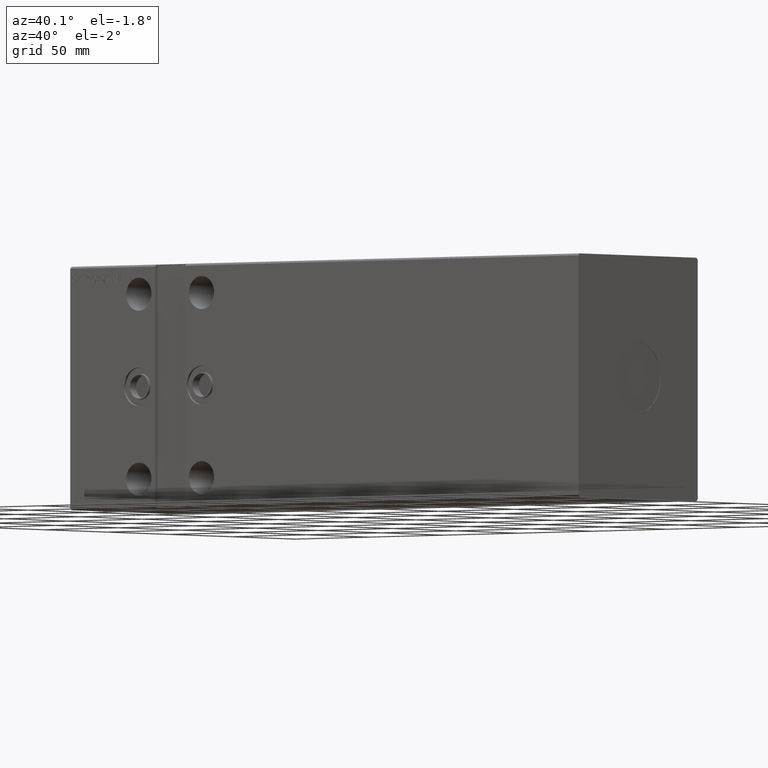
[diagram: clean part render]
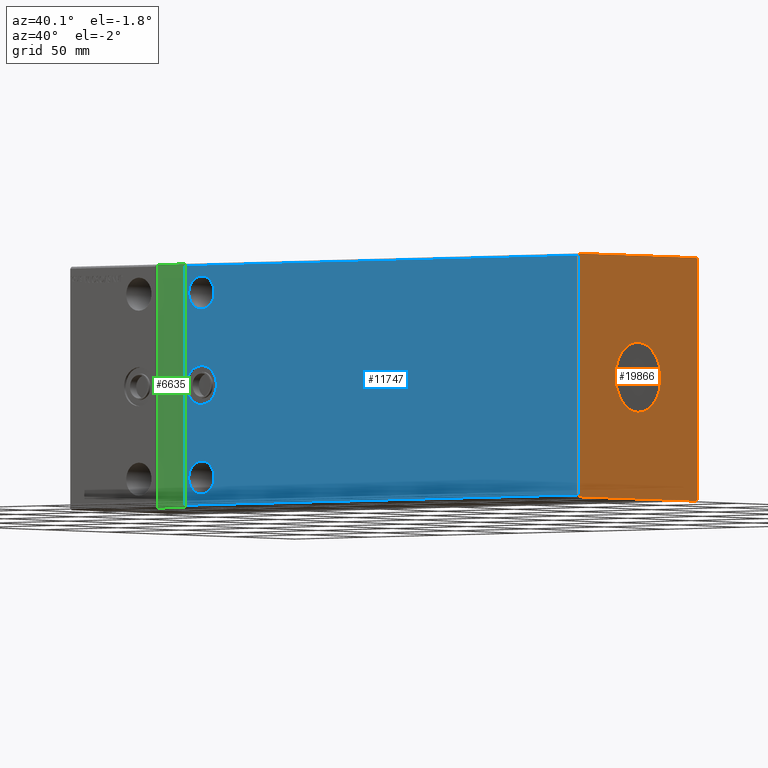
[diagram: same view with three faces highlighted in distinct colors, each labeled with its STEP entity id]
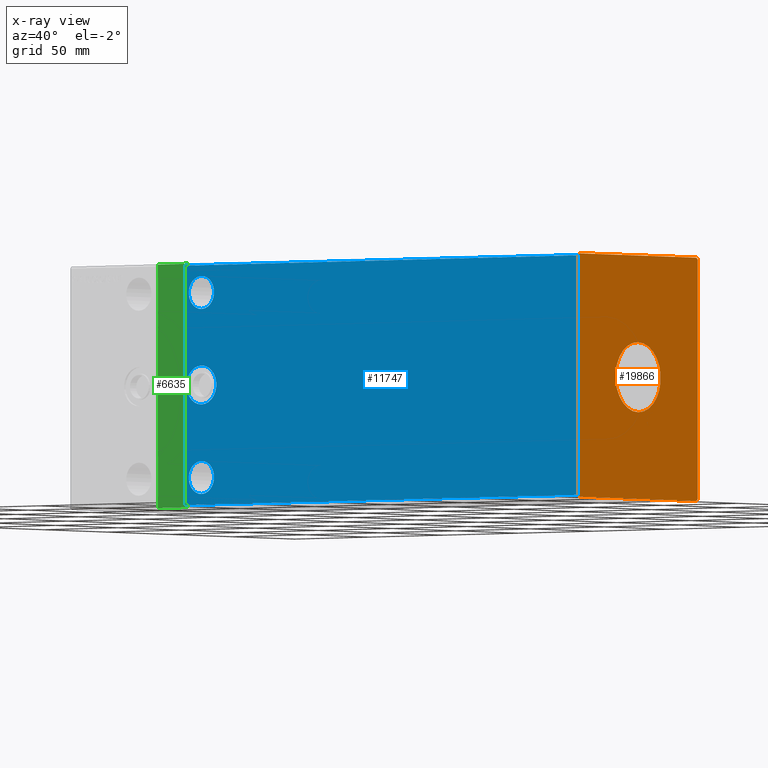
[diagram: x-ray of the same camera — body ghosted, the three highlighted faces saturated]
A machine part, auxiliary view with three faces highlighted in distinct colors.
The next image is the same camera in x-ray (body ghosted, the three faces saturated) — at least one of them is partly hidden behind the body in this view.
Their STEP definitions:

[orange] entity #19866 — the highlighted planar face has unit normal (1, 0, 0).
#725 = VERTEX_POINT ( 'NONE', #14111 ) ;
#1366 = DIRECTION ( 'NONE',  ( 0.000000000000000000, 0.7071067811865574537, 0.7071067811865376918 ) ) ;
#2636 = ORIENTED_EDGE ( 'NONE', *, *, #28074, .T. ) ;
#2779 = LINE ( 'NONE', #25714, #17661 ) ;
#3724 = DIRECTION ( 'NONE',  ( 1.000000000000000000, 0.000000000000000000, 0.000000000000000000 ) ) ;
#4388 = EDGE_CURVE ( 'NONE', #19469, #4892, #38250, .T. ) ;
#4892 = VERTEX_POINT ( 'NONE', #12856 ) ;
#5036 = ORIENTED_EDGE ( 'NONE', *, *, #28655, .F. ) ;
#7652 = ORIENTED_EDGE ( 'NONE', *, *, #38744, .T. ) ;
#8038 = VECTOR ( 'NONE', #17250, 1000.000000000000000 ) ;
#8917 = EDGE_LOOP ( 'NONE', ( #5036, #22134 ) ) ;
#9319 = DIRECTION ( 'NONE',  ( 0.000000000000000000, 1.000000000000000000, 1.492235248152092278E-16 ) ) ;
#9771 = VERTEX_POINT ( 'NONE', #34800 ) ;
#10301 = DIRECTION ( 'NONE',  ( 0.000000000000000000, 0.000000000000000000, -1.000000000000000000 ) ) ;
#10365 = LINE ( 'NONE', #20351, #10499 ) ;
#10499 = VECTOR ( 'NONE', #30143, 1000.000000000000000 ) ;
#11216 = VERTEX_POINT ( 'NONE', #41343 ) ;
#11528 = EDGE_CURVE ( 'NONE', #24691, #725, #16600, .T. ) ;
#12005 = VERTEX_POINT ( 'NONE', #14969 ) ;
#12856 = CARTESIAN_POINT ( 'NONE',  ( 341.0000000000000000, 0.000000000000000000, -18.00000000000000000 ) ) ;
#12877 = CARTESIAN_POINT ( 'NONE',  ( 341.0000000000000000, 46.50000000000000000, 62.49999999999998579 ) ) ;
#13189 = CARTESIAN_POINT ( 'NONE',  ( 341.0000000000000000, -47.49999999999999289, -61.50000000000001421 ) ) ;
#13522 = EDGE_CURVE ( 'NONE', #16272, #12005, #10365, .T. ) ;
#13615 = DIRECTION ( 'NONE',  ( 0.000000000000000000, 0.000000000000000000, -1.000000000000000000 ) ) ;
#14021 = ORIENTED_EDGE ( 'NONE', *, *, #13522, .T. ) ;
#14111 = CARTESIAN_POINT ( 'NONE',  ( 341.0000000000000000, -46.50000000000000000, -62.50000000000001421 ) ) ;
#14308 = CARTESIAN_POINT ( 'NONE',  ( 341.0000000000000000, 46.50000000000000000, -62.50000000000000000 ) ) ;
#14454 = AXIS2_PLACEMENT_3D ( 'NONE', #15094, #28064, #26134 ) ;
#14960 = CARTESIAN_POINT ( 'NONE',  ( 341.0000000000000000, 2.204364238465235428E-15, 18.00000000000000000 ) ) ;
#14969 = CARTESIAN_POINT ( 'NONE',  ( 341.0000000000000000, -46.50000000000001421, 62.49999999999997868 ) ) ;
#14994 = VECTOR ( 'NONE', #1366, 999.9999999999998863 ) ;
#15094 = CARTESIAN_POINT ( 'NONE',  ( 341.0000000000000000, 0.000000000000000000, 0.000000000000000000 ) ) ;
#15990 = LINE ( 'NONE', #38943, #20190 ) ;
#16181 = DIRECTION ( 'NONE',  ( 0.000000000000000000, 0.7071067811865451302, -0.7071067811865500152 ) ) ;
#16217 = CIRCLE ( 'NONE', #41363, 18.00000000000000000 ) ;
#16272 = VERTEX_POINT ( 'NONE', #12877 ) ;
#16600 = LINE ( 'NONE', #13189, #23431 ) ;
#16803 = CARTESIAN_POINT ( 'NONE',  ( 341.0000000000000000, 0.000000000000000000, 0.000000000000000000 ) ) ;
#17250 = DIRECTION ( 'NONE',  ( 0.000000000000000000, 1.692413147294445970E-16, -1.000000000000000000 ) ) ;
#17661 = VECTOR ( 'NONE', #22108, 1000.000000000000114 ) ;
#18003 = CARTESIAN_POINT ( 'NONE',  ( 341.0000000000000000, 46.50000000000000000, -62.50000000000000000 ) ) ;
#18070 = CARTESIAN_POINT ( 'NONE',  ( 341.0000000000000000, -47.50000000000001421, 61.49999999999997868 ) ) ;
#19469 = VERTEX_POINT ( 'NONE', #14960 ) ;
#19648 = EDGE_LOOP ( 'NONE', ( #21831, #14021, #2636, #7652, #24038, #39824, #29046, #36689 ) ) ;
#19866 = ADVANCED_FACE ( 'NONE', ( #33183, #23390 ), #19994, .T. ) ;
#19994 = PLANE ( 'NONE',  #30998 ) ;
#20190 = VECTOR ( 'NONE', #32361, 1000.000000000000114 ) ;
#20313 = VECTOR ( 'NONE', #9319, 1000.000000000000000 ) ;
#20351 = CARTESIAN_POINT ( 'NONE',  ( 341.0000000000000000, 46.50000000000000000, 62.49999999999998579 ) ) ;
#21114 = LINE ( 'NONE', #28120, #23620 ) ;
#21831 = ORIENTED_EDGE ( 'NONE', *, *, #36425, .T. ) ;
#22108 = DIRECTION ( 'NONE',  ( 0.000000000000000000, -0.7071067811865474617, -0.7071067811865474617 ) ) ;
#22134 = ORIENTED_EDGE ( 'NONE', *, *, #4388, .F. ) ;
#23390 = FACE_OUTER_BOUND ( 'NONE', #19648, .T. ) ;
#23431 = VECTOR ( 'NONE', #16181, 1000.000000000000114 ) ;
#23620 = VECTOR ( 'NONE', #30699, 1000.000000000000000 ) ;
#24038 = ORIENTED_EDGE ( 'NONE', *, *, #11528, .T. ) ;
#24691 = VERTEX_POINT ( 'NONE', #38374 ) ;
#25714 = CARTESIAN_POINT ( 'NONE',  ( 341.0000000000000000, -46.50000000000001421, 62.49999999999997868 ) ) ;
#26134 = DIRECTION ( 'NONE',  ( 0.000000000000000000, 0.000000000000000000, -1.000000000000000000 ) ) ;
#27684 = LINE ( 'NONE', #14308, #14994 ) ;
#28064 = DIRECTION ( 'NONE',  ( 1.000000000000000000, 0.000000000000000000, 0.000000000000000000 ) ) ;
#28074 = EDGE_CURVE ( 'NONE', #12005, #40656, #2779, .T. ) ;
#28120 = CARTESIAN_POINT ( 'NONE',  ( 341.0000000000000000, 47.50000000000001421, -61.50000000000001421 ) ) ;
#28655 = EDGE_CURVE ( 'NONE', #4892, #19469, #16217, .T. ) ;
#29046 = ORIENTED_EDGE ( 'NONE', *, *, #35428, .T. ) ;
#29789 = DIRECTION ( 'NONE',  ( 1.000000000000000000, 0.000000000000000000, 0.000000000000000000 ) ) ;
#29903 = EDGE_CURVE ( 'NONE', #725, #32379, #35051, .T. ) ;
#30143 = DIRECTION ( 'NONE',  ( 0.000000000000000000, -1.000000000000000000, -7.461176240760460157E-17 ) ) ;
#30699 = DIRECTION ( 'NONE',  ( 0.000000000000000000, -1.128275431529630729E-16, 1.000000000000000000 ) ) ;
#30998 = AXIS2_PLACEMENT_3D ( 'NONE', #16803, #29789, #13615 ) ;
#32361 = DIRECTION ( 'NONE',  ( 0.000000000000000000, -0.7071067811865474617, 0.7071067811865474617 ) ) ;
#32379 = VERTEX_POINT ( 'NONE', #18003 ) ;
#32581 = CARTESIAN_POINT ( 'NONE',  ( 341.0000000000000000, -47.50000000000001421, 61.49999999999997868 ) ) ;
#33183 = FACE_BOUND ( 'NONE', #8917, .T. ) ;
#34800 = CARTESIAN_POINT ( 'NONE',  ( 341.0000000000000000, 47.50000000000001421, -61.50000000000001421 ) ) ;
#35051 = LINE ( 'NONE', #41646, #20313 ) ;
#35428 = EDGE_CURVE ( 'NONE', #32379, #9771, #27684, .T. ) ;
#36425 = EDGE_CURVE ( 'NONE', #11216, #16272, #15990, .T. ) ;
#36689 = ORIENTED_EDGE ( 'NONE', *, *, #38589, .T. ) ;
#38250 = CIRCLE ( 'NONE', #14454, 18.00000000000000000 ) ;
#38374 = CARTESIAN_POINT ( 'NONE',  ( 341.0000000000000000, -47.49999999999999289, -61.50000000000001421 ) ) ;
#38589 = EDGE_CURVE ( 'NONE', #9771, #11216, #21114, .T. ) ;
#38744 = EDGE_CURVE ( 'NONE', #40656, #24691, #39801, .T. ) ;
#38943 = CARTESIAN_POINT ( 'NONE',  ( 341.0000000000000000, 47.50000000000000000, 61.49999999999998579 ) ) ;
#39432 = CARTESIAN_POINT ( 'NONE',  ( 341.0000000000000000, 0.000000000000000000, 0.000000000000000000 ) ) ;
#39801 = LINE ( 'NONE', #32581, #8038 ) ;
#39824 = ORIENTED_EDGE ( 'NONE', *, *, #29903, .T. ) ;
#40656 = VERTEX_POINT ( 'NONE', #18070 ) ;
#41343 = CARTESIAN_POINT ( 'NONE',  ( 341.0000000000000000, 47.50000000000000000, 61.49999999999998579 ) ) ;
#41363 = AXIS2_PLACEMENT_3D ( 'NONE', #39432, #3724, #10301 ) ;
#41646 = CARTESIAN_POINT ( 'NONE',  ( 341.0000000000000000, -46.50000000000000000, -62.50000000000001421 ) ) ;

[blue] entity #11747 — the highlighted planar face has unit normal (-0, 1, 0).
#1033 = EDGE_CURVE ( 'NONE', #30966, #4385, #18378, .T. ) ;
#1630 = DIRECTION ( 'NONE',  ( 0.000000000000000000, 0.000000000000000000, 1.000000000000000000 ) ) ;
#1984 = EDGE_CURVE ( 'NONE', #4385, #30966, #2099, .T. ) ;
#2099 = CIRCLE ( 'NONE', #10913, 9.999999999999994671 ) ;
#2265 = ORIENTED_EDGE ( 'NONE', *, *, #10976, .F. ) ;
#2475 = AXIS2_PLACEMENT_3D ( 'NONE', #19744, #9754, #29320 ) ;
#3740 = DIRECTION ( 'NONE',  ( 0.000000000000000000, 0.000000000000000000, 1.000000000000000000 ) ) ;
#3831 = DIRECTION ( 'NONE',  ( 0.000000000000000000, -1.000000000000000000, -1.692413147294446463E-16 ) ) ;
#4043 = DIRECTION ( 'NONE',  ( 0.000000000000000000, 0.000000000000000000, 1.000000000000000000 ) ) ;
#4385 = VERTEX_POINT ( 'NONE', #12544 ) ;
#5782 = EDGE_CURVE ( 'NONE', #40656, #38372, #23421, .T. ) ;
#6001 = EDGE_LOOP ( 'NONE', ( #2265, #33177 ) ) ;
#6934 = DIRECTION ( 'NONE',  ( 0.000000000000000000, -1.000000000000000000, -1.692413147294446463E-16 ) ) ;
#7283 = CARTESIAN_POINT ( 'NONE',  ( 341.0000000000000000, -47.50000000000001421, 61.49999999999997868 ) ) ;
#7787 = VECTOR ( 'NONE', #22590, 1000.000000000000000 ) ;
#8038 = VECTOR ( 'NONE', #17250, 1000.000000000000000 ) ;
#8176 = CARTESIAN_POINT ( 'NONE',  ( 88.00000000000002842, -47.50000000000000000, -9.834339797136963856E-15 ) ) ;
#8862 = EDGE_CURVE ( 'NONE', #24691, #12209, #25358, .T. ) ;
#9292 = ORIENTED_EDGE ( 'NONE', *, *, #1033, .T. ) ;
#9754 = DIRECTION ( 'NONE',  ( -0.000000000000000000, 1.000000000000000000, 1.692413147294446463E-16 ) ) ;
#10078 = CIRCLE ( 'NONE', #38599, 8.500000000000007105 ) ;
#10238 = EDGE_LOOP ( 'NONE', ( #37025, #40506 ) ) ;
#10254 = DIRECTION ( 'NONE',  ( -1.000000000000000000, -0.000000000000000000, -0.000000000000000000 ) ) ;
#10648 = CARTESIAN_POINT ( 'NONE',  ( 88.00000000000001421, -47.50000000000001421, 55.99999999999999289 ) ) ;
#10762 = CARTESIAN_POINT ( 'NONE',  ( 88.00000000000002842, -47.50000000000000000, -47.50000000000000711 ) ) ;
#10913 = AXIS2_PLACEMENT_3D ( 'NONE', #8176, #34319, #18143 ) ;
#10976 = EDGE_CURVE ( 'NONE', #16654, #37663, #21966, .T. ) ;
#11158 = VERTEX_POINT ( 'NONE', #25366 ) ;
#11408 = EDGE_LOOP ( 'NONE', ( #13683, #9292 ) ) ;
#11557 = ORIENTED_EDGE ( 'NONE', *, *, #5782, .T. ) ;
#11747 = ADVANCED_FACE ( 'NONE', ( #34442, #25061, #40818, #15283 ), #37826, .F. ) ;
#11963 = CARTESIAN_POINT ( 'NONE',  ( 88.00000000000002842, -47.50000000000000000, -9.834339797136963856E-15 ) ) ;
#12209 = VERTEX_POINT ( 'NONE', #16445 ) ;
#12544 = CARTESIAN_POINT ( 'NONE',  ( 88.00000000000002842, -47.50000000000000000, -10.00000000000000533 ) ) ;
#13467 = VECTOR ( 'NONE', #33195, 1000.000000000000000 ) ;
#13683 = ORIENTED_EDGE ( 'NONE', *, *, #1984, .T. ) ;
#14510 = AXIS2_PLACEMENT_3D ( 'NONE', #35829, #6934, #3740 ) ;
#14846 = AXIS2_PLACEMENT_3D ( 'NONE', #19769, #3831, #4043 ) ;
#15012 = ORIENTED_EDGE ( 'NONE', *, *, #38744, .F. ) ;
#15074 = CARTESIAN_POINT ( 'NONE',  ( 341.0000000000000000, -47.50000000000001421, 61.49999999999997868 ) ) ;
#15283 = FACE_BOUND ( 'NONE', #6001, .T. ) ;
#16445 = CARTESIAN_POINT ( 'NONE',  ( 77.00000000000004263, -47.50000000000000000, -61.50000000000002132 ) ) ;
#16654 = VERTEX_POINT ( 'NONE', #18264 ) ;
#17250 = DIRECTION ( 'NONE',  ( 0.000000000000000000, 1.692413147294445970E-16, -1.000000000000000000 ) ) ;
#17608 = EDGE_CURVE ( 'NONE', #11158, #19633, #29635, .T. ) ;
#18070 = CARTESIAN_POINT ( 'NONE',  ( 341.0000000000000000, -47.50000000000001421, 61.49999999999997868 ) ) ;
#18143 = DIRECTION ( 'NONE',  ( 0.000000000000000000, 0.000000000000000000, 1.000000000000000000 ) ) ;
#18264 = CARTESIAN_POINT ( 'NONE',  ( 88.00000000000001421, -47.50000000000001421, 38.99999999999999289 ) ) ;
#18378 = CIRCLE ( 'NONE', #31288, 9.999999999999994671 ) ;
#19190 = DIRECTION ( 'NONE',  ( -0.000000000000000000, 1.000000000000000000, 5.507058653894625853E-17 ) ) ;
#19633 = VERTEX_POINT ( 'NONE', #23232 ) ;
#19744 = CARTESIAN_POINT ( 'NONE',  ( 88.00000000000002842, -47.50000000000000000, -47.50000000000000711 ) ) ;
#19769 = CARTESIAN_POINT ( 'NONE',  ( 88.00000000000001421, -47.50000000000001421, 47.49999999999999289 ) ) ;
#19977 = ORIENTED_EDGE ( 'NONE', *, *, #25682, .F. ) ;
#20216 = LINE ( 'NONE', #36376, #13467 ) ;
#21966 = CIRCLE ( 'NONE', #14510, 8.500000000000000000 ) ;
#22205 = CARTESIAN_POINT ( 'NONE',  ( 77.00000000000001421, -47.50000000000000000, 61.49999999999999289 ) ) ;
#22590 = DIRECTION ( 'NONE',  ( -1.000000000000000000, -0.000000000000000000, -0.000000000000000000 ) ) ;
#23232 = CARTESIAN_POINT ( 'NONE',  ( 88.00000000000002842, -47.50000000000000000, -39.00000000000000000 ) ) ;
#23421 = LINE ( 'NONE', #7283, #24669 ) ;
#24374 = CIRCLE ( 'NONE', #14846, 8.500000000000000000 ) ;
#24532 = ORIENTED_EDGE ( 'NONE', *, *, #8862, .F. ) ;
#24669 = VECTOR ( 'NONE', #10254, 1000.000000000000000 ) ;
#24691 = VERTEX_POINT ( 'NONE', #38374 ) ;
#25061 = FACE_BOUND ( 'NONE', #10238, .T. ) ;
#25358 = LINE ( 'NONE', #38765, #7787 ) ;
#25366 = CARTESIAN_POINT ( 'NONE',  ( 88.00000000000002842, -47.50000000000000000, -56.00000000000001421 ) ) ;
#25682 = EDGE_CURVE ( 'NONE', #12209, #38372, #20216, .T. ) ;
#25765 = EDGE_CURVE ( 'NONE', #19633, #11158, #10078, .T. ) ;
#28885 = EDGE_CURVE ( 'NONE', #37663, #16654, #24374, .T. ) ;
#29320 = DIRECTION ( 'NONE',  ( 0.000000000000000000, 0.000000000000000000, 1.000000000000000000 ) ) ;
#29635 = CIRCLE ( 'NONE', #2475, 8.500000000000007105 ) ;
#30956 = DIRECTION ( 'NONE',  ( -0.000000000000000000, 1.000000000000000000, 1.692413147294446463E-16 ) ) ;
#30966 = VERTEX_POINT ( 'NONE', #32238 ) ;
#31288 = AXIS2_PLACEMENT_3D ( 'NONE', #11963, #19190, #31535 ) ;
#31452 = DIRECTION ( 'NONE',  ( -0.000000000000000000, 1.000000000000000000, 1.692413147294446463E-16 ) ) ;
#31535 = DIRECTION ( 'NONE',  ( 0.000000000000000000, 0.000000000000000000, 1.000000000000000000 ) ) ;
#32238 = CARTESIAN_POINT ( 'NONE',  ( 88.00000000000002842, -47.50000000000000000, 9.999999999999984013 ) ) ;
#32581 = CARTESIAN_POINT ( 'NONE',  ( 341.0000000000000000, -47.50000000000001421, 61.49999999999997868 ) ) ;
#33177 = ORIENTED_EDGE ( 'NONE', *, *, #28885, .F. ) ;
#33195 = DIRECTION ( 'NONE',  ( -2.220446049250313081E-16, -0.000000000000000000, 1.000000000000000000 ) ) ;
#34319 = DIRECTION ( 'NONE',  ( -0.000000000000000000, 1.000000000000000000, 5.507058653894625853E-17 ) ) ;
#34442 = FACE_BOUND ( 'NONE', #11408, .T. ) ;
#34757 = EDGE_LOOP ( 'NONE', ( #11557, #19977, #24532, #15012 ) ) ;
#35067 = DIRECTION ( 'NONE',  ( 0.000000000000000000, -1.692413147294446463E-16, 1.000000000000000000 ) ) ;
#35573 = AXIS2_PLACEMENT_3D ( 'NONE', #15074, #31452, #35067 ) ;
#35829 = CARTESIAN_POINT ( 'NONE',  ( 88.00000000000001421, -47.50000000000001421, 47.49999999999999289 ) ) ;
#36376 = CARTESIAN_POINT ( 'NONE',  ( 77.00000000000001421, -47.50000000000000000, 62.49999999999997868 ) ) ;
#37025 = ORIENTED_EDGE ( 'NONE', *, *, #17608, .T. ) ;
#37663 = VERTEX_POINT ( 'NONE', #10648 ) ;
#37826 = PLANE ( 'NONE',  #35573 ) ;
#38372 = VERTEX_POINT ( 'NONE', #22205 ) ;
#38374 = CARTESIAN_POINT ( 'NONE',  ( 341.0000000000000000, -47.49999999999999289, -61.50000000000001421 ) ) ;
#38599 = AXIS2_PLACEMENT_3D ( 'NONE', #10762, #30956, #1630 ) ;
#38744 = EDGE_CURVE ( 'NONE', #40656, #24691, #39801, .T. ) ;
#38765 = CARTESIAN_POINT ( 'NONE',  ( 341.0000000000000000, -47.49999999999999289, -61.50000000000001421 ) ) ;
#39801 = LINE ( 'NONE', #32581, #8038 ) ;
#40506 = ORIENTED_EDGE ( 'NONE', *, *, #25765, .T. ) ;
#40656 = VERTEX_POINT ( 'NONE', #18070 ) ;
#40818 = FACE_OUTER_BOUND ( 'NONE', #34757, .T. ) ;

[green] entity #6635 — the highlighted planar face has unit normal (0, -1, 0).
#1270 = CARTESIAN_POINT ( 'NONE',  ( 56.99999999999999289, -45.50000000000000000, 62.49999999999997868 ) ) ;
#2826 = VECTOR ( 'NONE', #16455, 1000.000000000000000 ) ;
#2930 = EDGE_CURVE ( 'NONE', #24053, #35574, #6689, .T. ) ;
#3851 = EDGE_CURVE ( 'NONE', #41665, #24053, #22258, .T. ) ;
#4322 = ORIENTED_EDGE ( 'NONE', *, *, #33623, .T. ) ;
#5660 = VECTOR ( 'NONE', #9508, 1000.000000000000000 ) ;
#6635 = ADVANCED_FACE ( 'NONE', ( #14899 ), #11082, .T. ) ;
#6689 = LINE ( 'NONE', #35797, #2826 ) ;
#6864 = DIRECTION ( 'NONE',  ( -2.220446049250313081E-16, -0.000000000000000000, 1.000000000000000000 ) ) ;
#7069 = CARTESIAN_POINT ( 'NONE',  ( 77.00000000000001421, -45.50000000000000000, 62.49999999999997868 ) ) ;
#7527 = CARTESIAN_POINT ( 'NONE',  ( 77.00000000000001421, -45.50000000000000000, 62.49999999999997868 ) ) ;
#7913 = DIRECTION ( 'NONE',  ( 0.000000000000000000, -0.000000000000000000, -1.000000000000000000 ) ) ;
#8123 = DIRECTION ( 'NONE',  ( 0.000000000000000000, -1.000000000000000000, 0.000000000000000000 ) ) ;
#8252 = CARTESIAN_POINT ( 'NONE',  ( 56.99999999999999289, -45.50000000000000000, 62.49999999999997868 ) ) ;
#8388 = EDGE_LOOP ( 'NONE', ( #40458, #4322, #9171, #19748 ) ) ;
#9171 = ORIENTED_EDGE ( 'NONE', *, *, #3851, .T. ) ;
#9508 = DIRECTION ( 'NONE',  ( 5.551115123125782702E-17, 0.000000000000000000, -1.000000000000000000 ) ) ;
#11082 = PLANE ( 'NONE',  #39642 ) ;
#11553 = VECTOR ( 'NONE', #6864, 1000.000000000000000 ) ;
#13831 = CARTESIAN_POINT ( 'NONE',  ( 77.00000000000004263, -45.50000000000000000, -62.50000000000002842 ) ) ;
#14899 = FACE_OUTER_BOUND ( 'NONE', #8388, .T. ) ;
#16455 = DIRECTION ( 'NONE',  ( 1.000000000000000000, 0.000000000000000000, 0.000000000000000000 ) ) ;
#19748 = ORIENTED_EDGE ( 'NONE', *, *, #2930, .T. ) ;
#22258 = LINE ( 'NONE', #25865, #5660 ) ;
#24053 = VERTEX_POINT ( 'NONE', #24405 ) ;
#24405 = CARTESIAN_POINT ( 'NONE',  ( 57.00000000000000000, -45.50000000000000000, -62.50000000000002842 ) ) ;
#25865 = CARTESIAN_POINT ( 'NONE',  ( 56.99999999999999289, -45.50000000000000000, 62.49999999999997868 ) ) ;
#27163 = LINE ( 'NONE', #8252, #27167 ) ;
#27167 = VECTOR ( 'NONE', #34186, 1000.000000000000000 ) ;
#27894 = EDGE_CURVE ( 'NONE', #35574, #35313, #35970, .T. ) ;
#33623 = EDGE_CURVE ( 'NONE', #35313, #41665, #27163, .T. ) ;
#34186 = DIRECTION ( 'NONE',  ( -1.000000000000000000, -0.000000000000000000, -0.000000000000000000 ) ) ;
#35313 = VERTEX_POINT ( 'NONE', #7527 ) ;
#35574 = VERTEX_POINT ( 'NONE', #13831 ) ;
#35797 = CARTESIAN_POINT ( 'NONE',  ( 57.00000000000000000, -45.50000000000000000, -62.50000000000002842 ) ) ;
#35970 = LINE ( 'NONE', #7069, #11553 ) ;
#37026 = CARTESIAN_POINT ( 'NONE',  ( 0.000000000000000000, -45.50000000000000000, 1.101411730778925047E-16 ) ) ;
#39642 = AXIS2_PLACEMENT_3D ( 'NONE', #37026, #8123, #7913 ) ;
#40458 = ORIENTED_EDGE ( 'NONE', *, *, #27894, .T. ) ;
#41665 = VERTEX_POINT ( 'NONE', #1270 ) ;